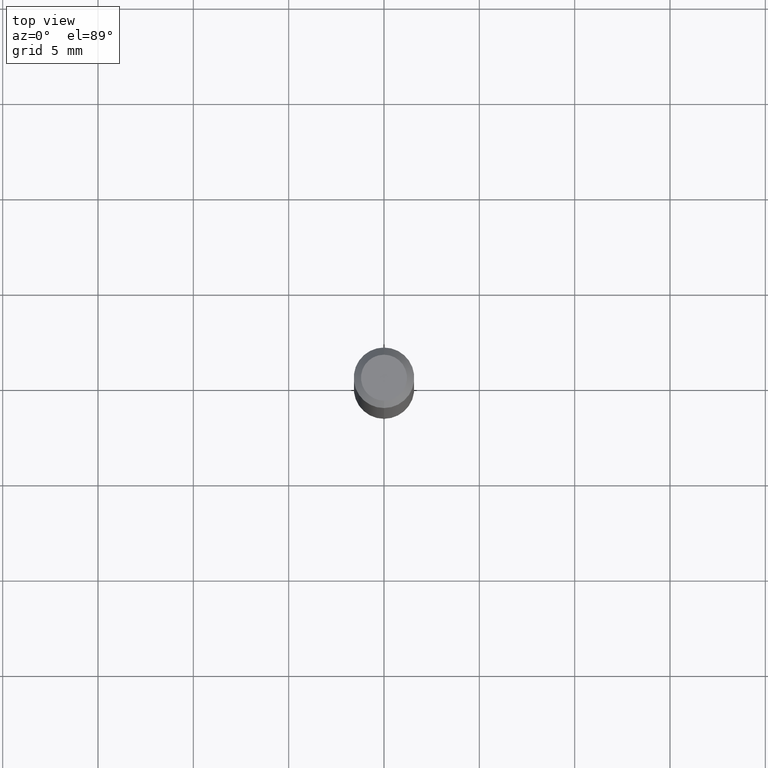
[diagram: clean part render]
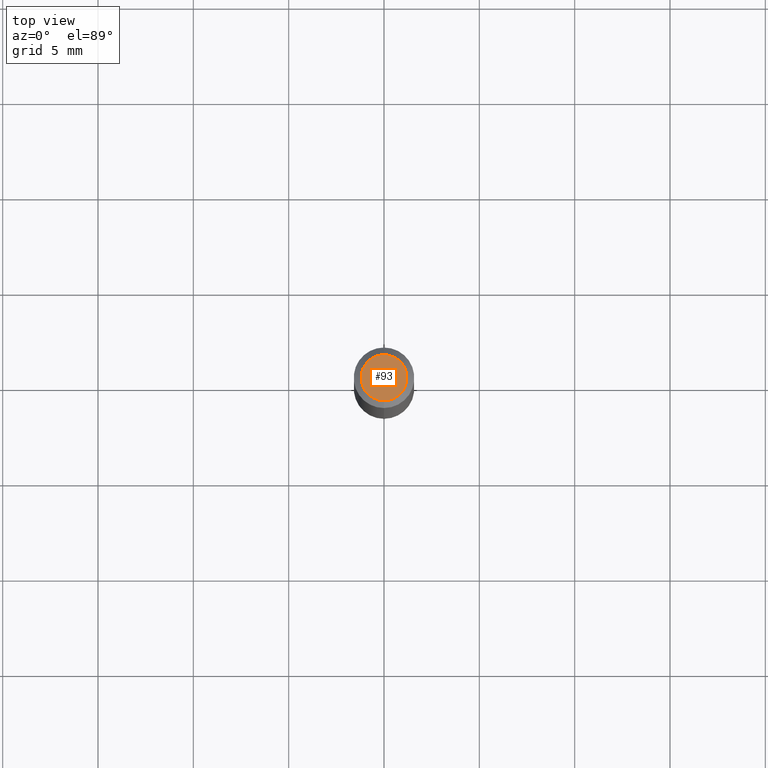
[diagram: same view with one face highlighted and labeled with its STEP entity id]
A machine part, top view. The second image highlights one B-rep face of the part: STEP entity #93.
In plain terms, the highlighted planar face has unit normal (0, -0, -1).
Its self-contained STEP definition (entity closure, byte-faithful):
#40 = EDGE_CURVE ( 'NONE', #163, #458, #345, .T. ) ;
#56 = CARTESIAN_POINT ( 'NONE',  ( 1.601727569271771274E-45, -2.286891121816010784E-31, -6.549846714817980427E-17 ) ) ;
#61 = DIRECTION ( 'NONE',  ( -6.982962677686266711E-15, -1.000000000000000000, 3.491518536826648695E-15 ) ) ;
#86 = EDGE_LOOP ( 'NONE', ( #323, #365 ) ) ;
#93 = ADVANCED_FACE ( 'NONE', ( #222 ), #328, .F. ) ;
#96 = DIRECTION ( 'NONE',  ( -6.982962677686266711E-15, -1.000000000000000000, 3.491518536826648695E-15 ) ) ;
#99 = CARTESIAN_POINT ( 'NONE',  ( -3.773273898774340269E-16, -0.04749999999999999362, 1.003486633510859949E-16 ) ) ;
#118 = CIRCLE ( 'NONE', #434, 0.04749999999999999362 ) ;
#143 = CARTESIAN_POINT ( 'NONE',  ( 1.601727569271771274E-45, -2.286891121816010784E-31, -6.549846714817980427E-17 ) ) ;
#163 = VERTEX_POINT ( 'NONE', #99 ) ;
#222 = FACE_OUTER_BOUND ( 'NONE', #86, .T. ) ;
#252 = EDGE_CURVE ( 'NONE', #458, #163, #118, .T. ) ;
#272 = DIRECTION ( 'NONE',  ( -2.445442830972087969E-29, 3.491518536826648695E-15, 1.000000000000000000 ) ) ;
#322 = CARTESIAN_POINT ( 'NONE',  ( 3.840629472727447874E-16, 0.04749999999999999362, -2.313455976474456528E-16 ) ) ;
#323 = ORIENTED_EDGE ( 'NONE', *, *, #252, .T. ) ;
#328 = PLANE ( 'NONE',  #496 ) ;
#336 = DIRECTION ( 'NONE',  ( -2.445442830972087969E-29, 3.491518536826648695E-15, 1.000000000000000000 ) ) ;
#345 = CIRCLE ( 'NONE', #450, 0.04749999999999999362 ) ;
#365 = ORIENTED_EDGE ( 'NONE', *, *, #40, .T. ) ;
#370 = CARTESIAN_POINT ( 'NONE',  ( 3.316907271900976096E-16, 0.04749999999999999362, -1.985963640733557137E-16 ) ) ;
#434 = AXIS2_PLACEMENT_3D ( 'NONE', #143, #272, #61 ) ;
#447 = DIRECTION ( 'NONE',  ( 2.445442830972087408E-29, -3.491518536826648695E-15, -1.000000000000000000 ) ) ;
#450 = AXIS2_PLACEMENT_3D ( 'NONE', #56, #336, #96 ) ;
#452 = DIRECTION ( 'NONE',  ( 6.982962677686265922E-15, 1.000000000000000000, -3.491518536826648695E-15 ) ) ;
#458 = VERTEX_POINT ( 'NONE', #322 ) ;
#496 = AXIS2_PLACEMENT_3D ( 'NONE', #370, #447, #452 ) ;